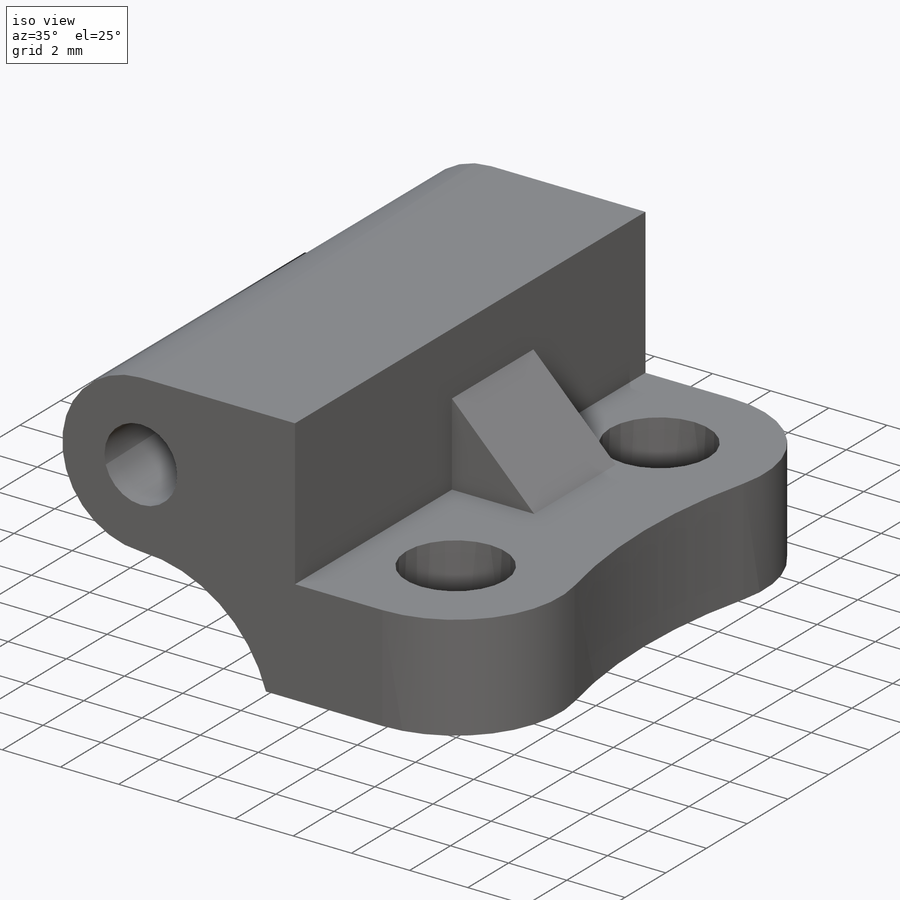
[diagram: iso view]
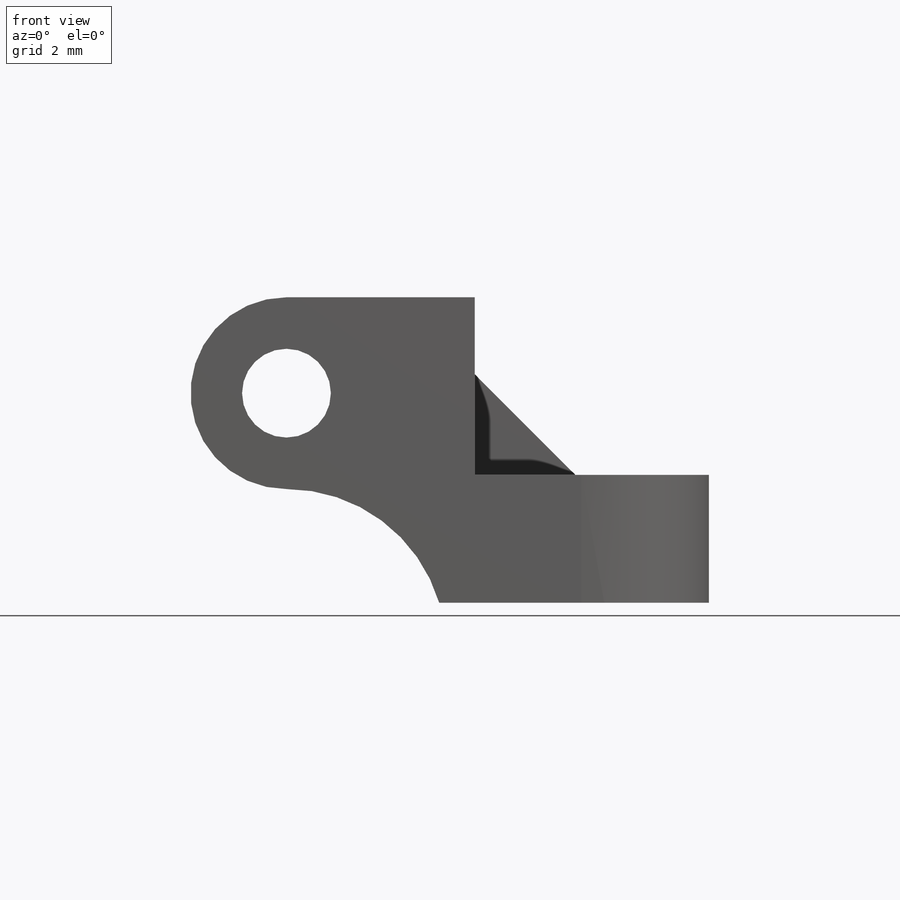
[diagram: front view]
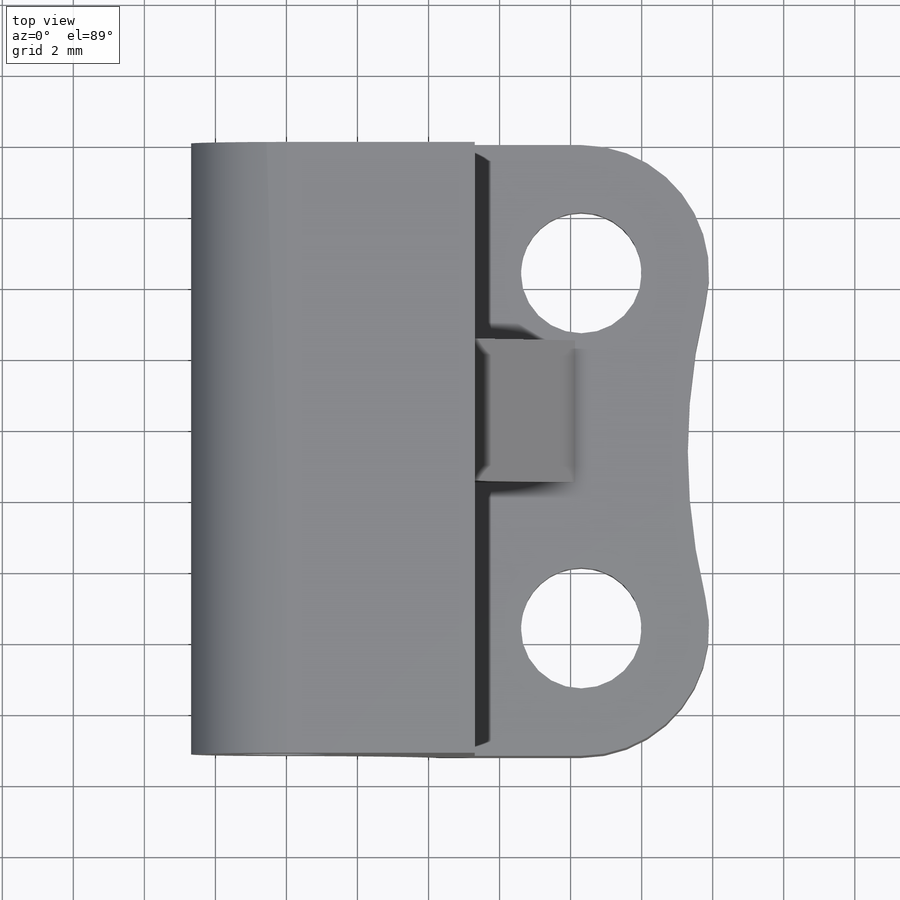
[diagram: top view]
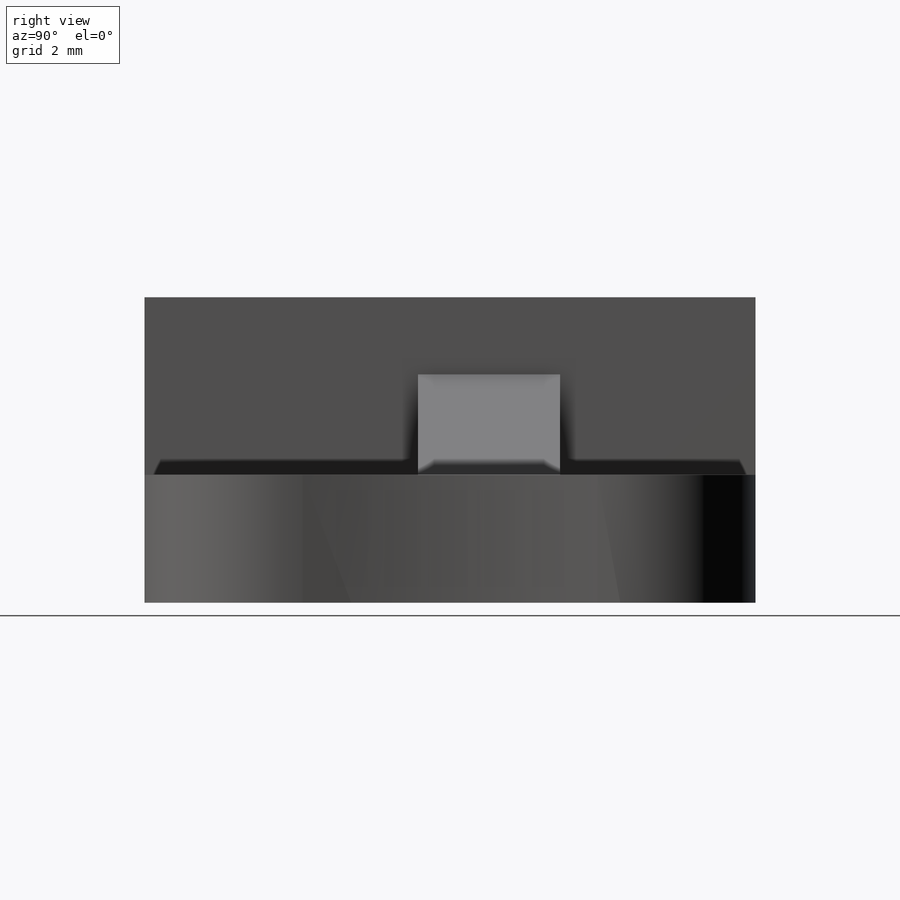
[diagram: right view]
SOLIDWORKS PART (.sldprt)
format: sldprt  version: not decoded by parser v0  size: 250,368 bytes
history: native  units: mm
features: plane x5, sketch x5, extrude x2, material x1, cut_extrude x1, hole x1 (+10 scaffold rows collapsed)
feature tree (25):
  scaffold x10  (default folders/planes/origin — collapsed)
  material  "材质 <未指定>"
  plane  "前视基准面"
  plane  "上视基准面"
  plane  "右视基准面"
  sketch  "草图1"  dims[c1.D1=2.5mm c1.D2=5.4mm c1.D9=~4.489062mm c1.D3=8.0mm c1.D4=5.0mm c1.D5=7.5mm c1.D6=3.6mm c1.D7=8.5mm c2.D3=5.0mm c2.D4=8.5mm c2.D8=3.6mm]
  extrude  "凸台-拉伸1"  Depth=17.2mm
  plane  "基准面1"  Offset=6mm
  sketch  "草图6"  dims[D1=0.0mm D2=0.0mm]
  cut_extrude  "切除-拉伸1"  [1 undecoded]
  plane  "基准面3"  Offset=5.5mm
  sketch  "草图7"  dims[D1=4.0mm]
  extrude  "凸台-拉伸2"  Depth=4mm
  hole  "打孔尺寸(%根据)开槽半沉头木螺钉的类型1"  [1 undecoded]
  sketch  "3D草图1"
  sketch  "草图8"  dims[hole-wizard template sketch: 39 standard entries collapsed; hole parameters kept: c13.孔直径=3.4mm c13.孔深度=8.6mm c13.近端锥形沉头孔直径=6.6mm c13.D4=~33.297463mm c13.近端锥形沉头孔角度=90.0deg c14.D5=~14.816244mm c14.导头角度=118.0deg]
decode coverage: 6 of 9 modeling features carry decoded parameters
note: ~ marks probable driven/reference dimensions
note: 2 parameter values undecoded
note: suppression state not decoded; provenance and decode notes live in map.json
